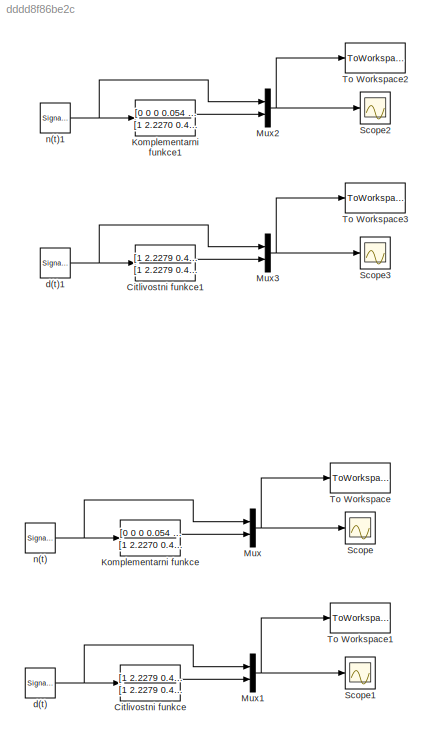
MODEL slx_dddd8f86be2c
KIND model
CONFIG AbsTol = auto
CONFIG FixedStep = 0.0001
CONFIG MaxStep = 1e-2
CONFIG MinStep = auto
CONFIG RelTol = 1e-3
CONFIG SampleTimeConstraint = Unconstrained
CONFIG Solver = FixedStepAuto
CONFIG SolverMode = Auto
CONFIG SolverName = FixedStepAuto
CONFIG StartTime = 0.0
CONFIG StopTime = 200
BLOCK [TransferFcn] Citlivostni funkce
  Denominator = [1 2.2279 0.462 0.066946 0.000545]
  Numerator = [1 2.2279 0.462 0.0124 0]
BLOCK [TransferFcn] Citlivostni funkce1
  Denominator = [1 2.2279 0.462 0.066946 0.000545]
  Numerator = [1 2.2279 0.462 0.0124 0]
BLOCK [TransferFcn] Komplementarni funkce
  Denominator = [1 2.2270 0.4620 0.0669 0.00054]
  Numerator = [0 0 0 0.054 0.00054]
BLOCK [TransferFcn] Komplementarni funkce1
  Denominator = [1 2.2270 0.4620 0.0669 0.00054]
  Numerator = [0 0 0 0.054 0.00054]
BLOCK [Mux] Mux
  DisplayOption = bar
  Inputs = 2
  Ports = [2, 1]
BLOCK [Mux] Mux1
  DisplayOption = bar
  Inputs = 2
  Ports = [2, 1]
BLOCK [Mux] Mux2
  DisplayOption = bar
  Inputs = 2
  Ports = [2, 1]
BLOCK [Mux] Mux3
  DisplayOption = bar
  Inputs = 2
  Ports = [2, 1]
BLOCK [Scope] Scope
  Ports = [1]
  ScopeSpecificationString = Simulink.scopes.TimeScopeBlockCfg('CurrentConfiguration', extmgr.ConfigurationSet(extmgr.Configuration('Core','General UI',true),extmgr.Configuration('Core','Source UI',true),extmgr.Configuration('Sources','WiredSimulink',true,'DataLoggingSaveFormat','StructureWithTime','DataLoggingDecimation','1','DataLoggingDecimateData',true),extmgr.Configuration('Visuals','Time Domain',true,'SerializedDisplays...<+1613ch>
BLOCK [Scope] Scope1
  Ports = [1]
  ScopeSpecificationString = Simulink.scopes.TimeScopeBlockCfg('CurrentConfiguration', extmgr.ConfigurationSet(extmgr.Configuration('Core','General UI',true),extmgr.Configuration('Core','Source UI',true),extmgr.Configuration('Sources','WiredSimulink',true,'DataLoggingVariableName','ScopeData1','DataLoggingSaveFormat','StructureWithTime','DataLoggingDecimation','1','DataLoggingDecimateData',true),extmgr.Configuration('Visuals'...<+1664ch>
BLOCK [Scope] Scope2
  Ports = [1]
  ScopeSpecificationString = Simulink.scopes.TimeScopeBlockCfg('CurrentConfiguration', extmgr.ConfigurationSet(extmgr.Configuration('Core','General UI',true),extmgr.Configuration('Core','Source UI',true),extmgr.Configuration('Sources','WiredSimulink',true,'DataLoggingSaveFormat','StructureWithTime','DataLoggingDecimation','1','DataLoggingDecimateData',true,'DataLoggingVariableName','ScopeData2'),extmgr.Configuration('Visuals'...<+1653ch>
BLOCK [Scope] Scope3
  Ports = [1]
  ScopeSpecificationString = Simulink.scopes.TimeScopeBlockCfg('CurrentConfiguration', extmgr.ConfigurationSet(extmgr.Configuration('Core','General UI',true),extmgr.Configuration('Core','Source UI',true),extmgr.Configuration('Sources','WiredSimulink',true,'DataLoggingVariableName','ScopeData3','DataLoggingSaveFormat','StructureWithTime','DataLoggingDecimation','1','DataLoggingDecimateData',true),extmgr.Configuration('Visuals'...<+1665ch>
BLOCK [ToWorkspace] To Workspace
  MaxDataPoints = inf
  Ports = [1]
  SampleTime = -1
  SaveFormat = Timeseries
  VariableName = simout
BLOCK [ToWorkspace] To Workspace1
  MaxDataPoints = inf
  Ports = [1]
  SampleTime = -1
  SaveFormat = Timeseries
  VariableName = simout1
BLOCK [ToWorkspace] To Workspace2
  MaxDataPoints = inf
  Ports = [1]
  SampleTime = -1
  SaveFormat = Timeseries
  VariableName = simout2
BLOCK [ToWorkspace] To Workspace3
  MaxDataPoints = inf
  Ports = [1]
  SampleTime = -1
  SaveFormat = Timeseries
  VariableName = simout3
BLOCK [SignalGenerator] d(t)
  Frequency = 0.21
  Ports = [0, 1]
  Units = rad/sec
BLOCK [SignalGenerator] d(t)1
  Frequency = 0.21
  Ports = [0, 1]
  Units = rad/sec
  WaveForm = square
BLOCK [SignalGenerator] n(t)
  Frequency = 0.097
  Ports = [0, 1]
  Units = rad/sec
BLOCK [SignalGenerator] n(t)1
  Frequency = 0.097
  Ports = [0, 1]
  Units = rad/sec
  WaveForm = square
LINE Citlivostni funkce1:1 -> Mux3:2
LINE Citlivostni funkce:1 -> Mux1:2
LINE Komplementarni funkce1:1 -> Mux2:2
LINE Komplementarni funkce:1 -> Mux:2
NET Mux1:1 -> Scope1:1, To Workspace1:1
NET Mux2:1 -> Scope2:1, To Workspace2:1
NET Mux3:1 -> Scope3:1, To Workspace3:1
NET Mux:1 -> Scope:1, To Workspace:1
NET d(t)1:1 -> Citlivostni funkce1:1, Mux3:1
NET d(t):1 -> Citlivostni funkce:1, Mux1:1
NET n(t)1:1 -> Komplementarni funkce1:1, Mux2:1
NET n(t):1 -> Komplementarni funkce:1, Mux:1
note: NET lines group one-source signal fan-out (src -> all destinations, sorted); 1:1 wires keep LINE
